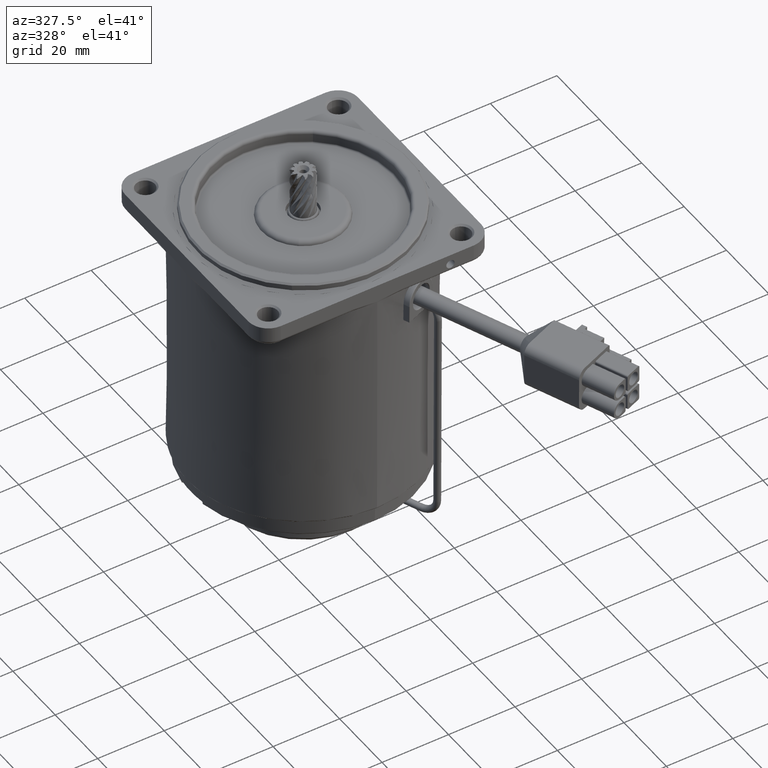
[diagram: clean part render]
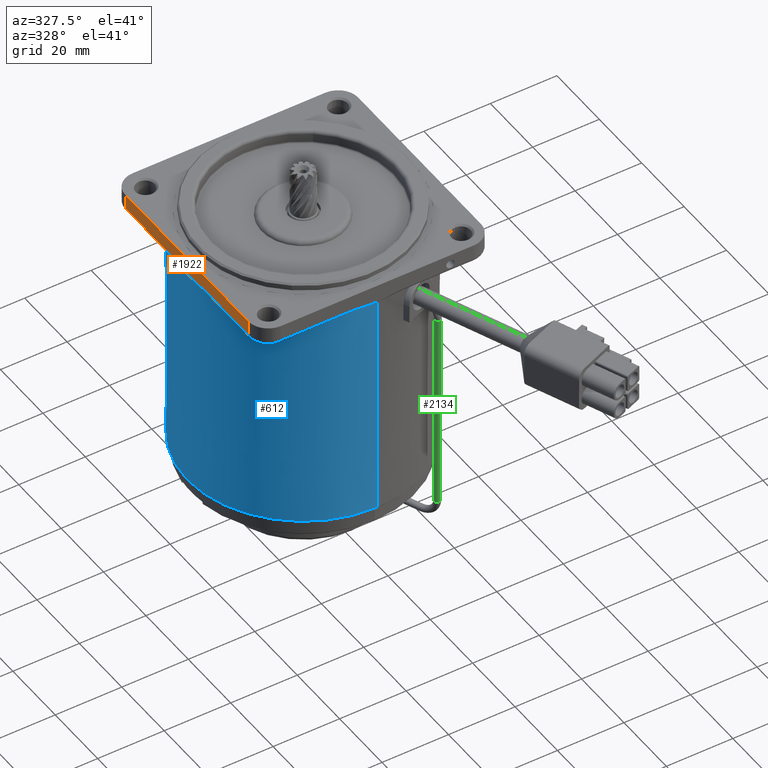
[diagram: same view with three faces highlighted in distinct colors, each labeled with its STEP entity id]
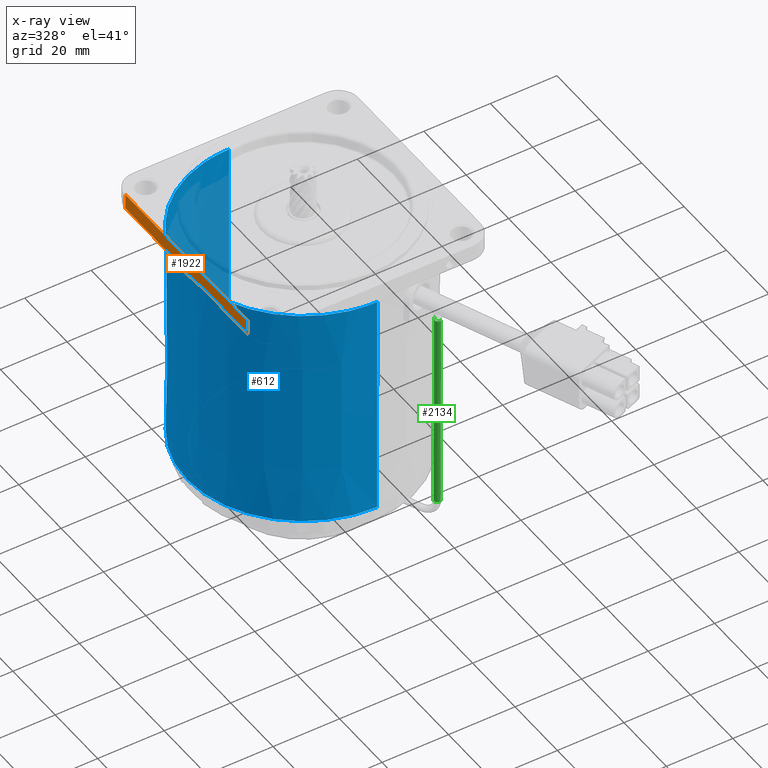
[diagram: x-ray of the same camera — body ghosted, the three highlighted faces saturated]
A machine part, auxiliary view with three faces highlighted in distinct colors.
The next image is the same camera in x-ray (body ghosted, the three faces saturated) — at least one of them is partly hidden behind the body in this view.
Their STEP definitions:

[orange] entity #1922 — the highlighted planar face has unit normal (-1, -0, -0).
#1689 = VERTEX_POINT ( 'NONE', #10441 ) ;
#1694 = EDGE_CURVE ( 'NONE', #1689, #1719, #10435, .T. ) ;
#1719 = VERTEX_POINT ( 'NONE', #10679 ) ;
#1745 = EDGE_CURVE ( 'NONE', #1746, #1764, #10994, .T. ) ;
#1746 = VERTEX_POINT ( 'NONE', #10992 ) ;
#1760 = EDGE_CURVE ( 'NONE', #1764, #1689, #11192, .T. ) ;
#1764 = VERTEX_POINT ( 'NONE', #11199 ) ;
#1844 = ORIENTED_EDGE ( 'NONE', *, *, #1923, .F. ) ;
#1847 = ORIENTED_EDGE ( 'NONE', *, *, #1924, .F. ) ;
#1850 = VERTEX_POINT ( 'NONE', #11571 ) ;
#1856 = ORIENTED_EDGE ( 'NONE', *, *, #1916, .T. ) ;
#1857 = EDGE_LOOP ( 'NONE', ( #1847, #1844, #1903, #1918, #1906, #1856 ) ) ;
#1862 = VERTEX_POINT ( 'NONE', #11615 ) ;
#1903 = ORIENTED_EDGE ( 'NONE', *, *, #1745, .T. ) ;
#1906 = ORIENTED_EDGE ( 'NONE', *, *, #1694, .T. ) ;
#1916 = EDGE_CURVE ( 'NONE', #1719, #1862, #11674, .T. ) ;
#1918 = ORIENTED_EDGE ( 'NONE', *, *, #1760, .T. ) ;
#1922 = ADVANCED_FACE ( 'NONE', ( #11728 ), #11721, .T. ) ;
#1923 = EDGE_CURVE ( 'NONE', #1746, #1850, #11717, .T. ) ;
#1924 = EDGE_CURVE ( 'NONE', #1850, #1862, #11708, .T. ) ;
#10432 = DIRECTION ( 'NONE',  ( -1.000000000000000000, 0.0000000000000000000, 0.0000000000000000000 ) ) ;
#10433 = VECTOR ( 'NONE', #10432, 1000.000000000000000 ) ;
#10435 = LINE ( 'NONE', #10442, #10433 ) ;
#10441 = CARTESIAN_POINT ( 'NONE',  ( -8.262388918002795200, 35.00000000000000000, -5.000000000000000000 ) ) ;
#10442 = CARTESIAN_POINT ( 'NONE',  ( -28.99999999999996100, 35.00000000000000000, -5.000000000000000000 ) ) ;
#10679 = CARTESIAN_POINT ( 'NONE',  ( -28.99999999999996100, 35.00000000000000000, -5.000000000000000000 ) ) ;
#10990 = DIRECTION ( 'NONE',  ( -1.000000000000000000, 0.0000000000000000000, 0.0000000000000000000 ) ) ;
#10991 = VECTOR ( 'NONE', #10990, 1000.000000000000000 ) ;
#10992 = CARTESIAN_POINT ( 'NONE',  ( 28.99999999999996100, 35.00000000000000000, -5.000000000000000000 ) ) ;
#10994 = LINE ( 'NONE', #11001, #10991 ) ;
#11001 = CARTESIAN_POINT ( 'NONE',  ( -28.99999999999996100, 35.00000000000000000, -5.000000000000000000 ) ) ;
#11192 = B_SPLINE_CURVE_WITH_KNOTS ( 'NONE', 3,
 ( #11252, #11251, #11250, #11249, #11248, #11247, #11246, #11245, #11244, #11243, #11242, #11241, #11240, #11239, #11238, #11237, #11236, #11235, #11234, #11233, #11232, #11231 ),
 .UNSPECIFIED., .F., .F.,
 ( 4, 2, 2, 2, 2, 2, 2, 2, 2, 2, 4 ),
 ( 0.0000000000000000000, 0.002075848444307581100, 0.004151696888615162200, 0.006227545332922740700, 0.007265469555076532600, 0.008303393777230322700, 0.009341317999384113700, 0.01037924222153790300, 0.01245509066584548500, 0.01453093911015306700, 0.01660678755446064500 ),
 .UNSPECIFIED. ) ;
#11199 = CARTESIAN_POINT ( 'NONE',  ( 8.262388918002791600, 35.00000000000000000, -5.000000000000000000 ) ) ;
#11231 = CARTESIAN_POINT ( 'NONE',  ( -8.262388918002795200, 35.00000000000000000, -5.000000000000000000 ) ) ;
#11232 = CARTESIAN_POINT ( 'NONE',  ( -7.566809155115128900, 35.00000000000000000, -5.000000000000004400 ) ) ;
#11233 = CARTESIAN_POINT ( 'NONE',  ( -6.874607581250430100, 35.00000000000000700, -5.038848051406572100 ) ) ;
#11234 = CARTESIAN_POINT ( 'NONE',  ( -5.493732071557480400, 34.99999999999999300, -5.157110819628743000 ) ) ;
#11235 = CARTESIAN_POINT ( 'NONE',  ( -4.805131084064811400, 35.00000000000000000, -5.237364418067435200 ) ) ;
#11236 = CARTESIAN_POINT ( 'NONE',  ( -3.429843145745550700, 35.00000000000000000, -5.419882400691942200 ) ) ;
#11237 = CARTESIAN_POINT ( 'NONE',  ( -2.743390315976686400, 35.00000000000000000, -5.523097039115362400 ) ) ;
#11238 = CARTESIAN_POINT ( 'NONE',  ( -1.713900357772869500, 35.00000000000000000, -5.677183927001580700 ) ) ;
#11239 = CARTESIAN_POINT ( 'NONE',  ( -1.370788944538081900, 35.00000000000000000, -5.728903047915269800 ) ) ;
#11240 = CARTESIAN_POINT ( 'NONE',  ( -0.6825192012154538400, 35.00000000000000000, -5.818269917176830400 ) ) ;
#11241 = CARTESIAN_POINT ( 'NONE',  ( -0.3367592003579819000, 34.99999999999999300, -5.856355137943740600 ) ) ;
#11242 = CARTESIAN_POINT ( 'NONE',  ( 0.3569606275094551200, 35.00000000000000700, -5.854942391709323100 ) ) ;
#11243 = CARTESIAN_POINT ( 'NONE',  ( 0.7004528748679930100, 35.00000000000000000, -5.816205279008959100 ) ) ;
#11244 = CARTESIAN_POINT ( 'NONE',  ( 1.386363469100297700, 34.99999999999999300, -5.726603597174279700 ) ) ;
#11245 = CARTESIAN_POINT ( 'NONE',  ( 1.728671550256424000, 34.99999999999999300, -5.674985864384846800 ) ) ;
#11246 = CARTESIAN_POINT ( 'NONE',  ( 2.755395784772543400, 35.00000000000000000, -5.521273766652870800 ) ) ;
#11247 = CARTESIAN_POINT ( 'NONE',  ( 3.439830156679016100, 35.00000000000000000, -5.418464220606325400 ) ) ;
#11248 = CARTESIAN_POINT ( 'NONE',  ( 4.812126346800164700, 35.00000000000000000, -5.236529991787119100 ) ) ;
#11249 = CARTESIAN_POINT ( 'NONE',  ( 5.499456577879501900, 35.00000000000000000, -5.156520519983172500 ) ) ;
#11250 = CARTESIAN_POINT ( 'NONE',  ( 6.878509073564059900, 35.00000000000000000, -5.038614649078252400 ) ) ;
#11251 = CARTESIAN_POINT ( 'NONE',  ( 7.569934658152855700, 35.00000000000000000, -4.999999999999999100 ) ) ;
#11252 = CARTESIAN_POINT ( 'NONE',  ( 8.262388918002791600, 35.00000000000000000, -5.000000000000000000 ) ) ;
#11571 = CARTESIAN_POINT ( 'NONE',  ( 28.99999999999996100, 35.00000000000000000, -0.5000000000000004400 ) ) ;
#11615 = CARTESIAN_POINT ( 'NONE',  ( -28.99999999999996100, 35.00000000000000000, -0.5000000000000004400 ) ) ;
#11669 = VECTOR ( 'NONE', #11731, 1000.000000000000000 ) ;
#11670 = CARTESIAN_POINT ( 'NONE',  ( -28.99999999999996100, 35.00000000000000000, -6.000000000000000000 ) ) ;
#11674 = LINE ( 'NONE', #11670, #11669 ) ;
#11675 = AXIS2_PLACEMENT_3D ( 'NONE', #11715, #11714, #11713 ) ;
#11705 = DIRECTION ( 'NONE',  ( -1.000000000000000000, 0.0000000000000000000, 0.0000000000000000000 ) ) ;
#11706 = VECTOR ( 'NONE', #11705, 1000.000000000000000 ) ;
#11707 = CARTESIAN_POINT ( 'NONE',  ( -28.99999999999996100, 35.00000000000000000, -0.5000000000000004400 ) ) ;
#11708 = LINE ( 'NONE', #11707, #11706 ) ;
#11710 = DIRECTION ( 'NONE',  ( 0.0000000000000000000, 0.0000000000000000000, 1.000000000000000000 ) ) ;
#11711 = VECTOR ( 'NONE', #11710, 1000.000000000000000 ) ;
#11712 = CARTESIAN_POINT ( 'NONE',  ( 28.99999999999996100, 35.00000000000000000, -6.000000000000000000 ) ) ;
#11713 = DIRECTION ( 'NONE',  ( 0.0000000000000000000, -0.0000000000000000000, 1.000000000000000000 ) ) ;
#11714 = DIRECTION ( 'NONE',  ( 0.0000000000000000000, 1.000000000000000000, 0.0000000000000000000 ) ) ;
#11715 = CARTESIAN_POINT ( 'NONE',  ( -28.99999999999996100, 35.00000000000000000, -6.000000000000000000 ) ) ;
#11717 = LINE ( 'NONE', #11712, #11711 ) ;
#11721 = PLANE ( 'NONE',  #11675 ) ;
#11728 = FACE_OUTER_BOUND ( 'NONE', #1857, .T. ) ;
#11731 = DIRECTION ( 'NONE',  ( 0.0000000000000000000, 0.0000000000000000000, 1.000000000000000000 ) ) ;

[blue] entity #612 — the highlighted conical surface has half-angle 0.1 deg.
#603 = ORIENTED_EDGE ( 'NONE', *, *, #626, .T. ) ;
#612 = ADVANCED_FACE ( 'NONE', ( #7637 ), #7357, .T. ) ;
#616 = ORIENTED_EDGE ( 'NONE', *, *, #617, .T. ) ;
#617 = EDGE_CURVE ( 'NONE', #627, #636, #7671, .T. ) ;
#618 = EDGE_LOOP ( 'NONE', ( #603, #635, #634, #616, #623, #663, #622, #656 ) ) ;
#622 = ORIENTED_EDGE ( 'NONE', *, *, #661, .T. ) ;
#623 = ORIENTED_EDGE ( 'NONE', *, *, #624, .T. ) ;
#624 = EDGE_CURVE ( 'NONE', #636, #638, #7655, .T. ) ;
#626 = EDGE_CURVE ( 'NONE', #631, #639, #7656, .T. ) ;
#627 = VERTEX_POINT ( 'NONE', #7669 ) ;
#629 = VERTEX_POINT ( 'NONE', #7649 ) ;
#631 = VERTEX_POINT ( 'NONE', #7703 ) ;
#632 = VERTEX_POINT ( 'NONE', #7706 ) ;
#633 = EDGE_CURVE ( 'NONE', #639, #632, #7705, .T. ) ;
#634 = ORIENTED_EDGE ( 'NONE', *, *, #637, .T. ) ;
#635 = ORIENTED_EDGE ( 'NONE', *, *, #633, .T. ) ;
#636 = VERTEX_POINT ( 'NONE', #7694 ) ;
#637 = EDGE_CURVE ( 'NONE', #632, #627, #7695, .T. ) ;
#638 = VERTEX_POINT ( 'NONE', #7698 ) ;
#639 = VERTEX_POINT ( 'NONE', #7697 ) ;
#656 = ORIENTED_EDGE ( 'NONE', *, *, #660, .F. ) ;
#660 = EDGE_CURVE ( 'NONE', #631, #629, #7713, .T. ) ;
#661 = EDGE_CURVE ( 'NONE', #770, #629, #7729, .T. ) ;
#663 = ORIENTED_EDGE ( 'NONE', *, *, #772, .T. ) ;
#770 = VERTEX_POINT ( 'NONE', #8420 ) ;
#772 = EDGE_CURVE ( 'NONE', #638, #770, #8440, .T. ) ;
#7354 = CARTESIAN_POINT ( 'NONE',  ( 0.0000000000000000000, 0.0000000000000000000, -75.00087266418292100 ) ) ;
#7357 = CONICAL_SURFACE ( 'NONE', #7373, 34.86909865009796800, 0.001745329251994349100 ) ;
#7359 = DIRECTION ( 'NONE',  ( 1.000000000000000000, 0.0000000000000000000, 0.0000000000000000000 ) ) ;
#7360 = DIRECTION ( 'NONE',  ( -0.0000000000000000000, -0.0000000000000000000, 1.000000000000000000 ) ) ;
#7373 = AXIS2_PLACEMENT_3D ( 'NONE', #7354, #7360, #7359 ) ;
#7637 = FACE_OUTER_BOUND ( 'NONE', #618, .T. ) ;
#7649 = CARTESIAN_POINT ( 'NONE',  ( 34.98952801385486600, 0.0000000000000000000, -6.000000000000005300 ) ) ;
#7650 = AXIS2_PLACEMENT_3D ( 'NONE', #7689, #7688, #7687 ) ;
#7652 = DIRECTION ( 'NONE',  ( -1.000000000000000000, 0.0000000000000000000, 0.0000000000000000000 ) ) ;
#7653 = DIRECTION ( 'NONE',  ( -0.0000000000000000000, -0.0000000000000000000, -1.000000000000000000 ) ) ;
#7654 = AXIS2_PLACEMENT_3D ( 'NONE', #7670, #7653, #7652 ) ;
#7655 = CIRCLE ( 'NONE', #7654, 34.98952801385487300 ) ;
#7656 = CIRCLE ( 'NONE', #7660, 34.86909865009796800 ) ;
#7660 = AXIS2_PLACEMENT_3D ( 'NONE', #7667, #7708, #7707 ) ;
#7663 = DIRECTION ( 'NONE',  ( -1.000000000000000000, 0.0000000000000000000, 0.0000000000000000000 ) ) ;
#7664 = DIRECTION ( 'NONE',  ( -0.0000000000000000000, -0.0000000000000000000, -1.000000000000000000 ) ) ;
#7665 = CARTESIAN_POINT ( 'NONE',  ( 0.0000000000000000000, 0.0000000000000000000, -6.000000000000005300 ) ) ;
#7666 = AXIS2_PLACEMENT_3D ( 'NONE', #7665, #7664, #7663 ) ;
#7667 = CARTESIAN_POINT ( 'NONE',  ( 0.0000000000000000000, 0.0000000000000000000, -75.00087266418292100 ) ) ;
#7669 = CARTESIAN_POINT ( 'NONE',  ( -34.00000000000000000, 8.262388918002768500, -6.000000000000005300 ) ) ;
#7670 = CARTESIAN_POINT ( 'NONE',  ( 0.0000000000000000000, 0.0000000000000000000, -6.000000000000005300 ) ) ;
#7671 = CIRCLE ( 'NONE', #7666, 34.98952801385487300 ) ;
#7687 = DIRECTION ( 'NONE',  ( -1.000000000000000000, 0.0000000000000000000, 0.0000000000000000000 ) ) ;
#7688 = DIRECTION ( 'NONE',  ( -0.0000000000000000000, -0.0000000000000000000, -1.000000000000000000 ) ) ;
#7689 = CARTESIAN_POINT ( 'NONE',  ( 0.0000000000000000000, 0.0000000000000000000, -6.000000000000005300 ) ) ;
#7692 = DIRECTION ( 'NONE',  ( -0.001745328365898328300, 2.137410796758468200E-019, 0.9999984769132876900 ) ) ;
#7693 = VECTOR ( 'NONE', #7692, 1000.000000000000000 ) ;
#7694 = CARTESIAN_POINT ( 'NONE',  ( -8.262388918002795200, 33.99999999999999300, -6.000000000000005300 ) ) ;
#7695 = CIRCLE ( 'NONE', #7650, 34.98952801385487300 ) ;
#7697 = CARTESIAN_POINT ( 'NONE',  ( -34.86909865009796800, 4.270233005099577300E-015, -75.00087266418292100 ) ) ;
#7698 = CARTESIAN_POINT ( 'NONE',  ( 8.262388918002795200, 33.99999999999999300, -6.000000000000005300 ) ) ;
#7703 = CARTESIAN_POINT ( 'NONE',  ( 34.86909865009796800, 0.0000000000000000000, -75.00087266418292100 ) ) ;
#7704 = CARTESIAN_POINT ( 'NONE',  ( -34.86909865009796800, 4.270233005099577300E-015, -75.00087266418292100 ) ) ;
#7705 = LINE ( 'NONE', #7704, #7693 ) ;
#7706 = CARTESIAN_POINT ( 'NONE',  ( -34.98952801385486600, 4.284981348584401200E-015, -6.000000000000005300 ) ) ;
#7707 = DIRECTION ( 'NONE',  ( 1.000000000000000000, 0.0000000000000000000, 0.0000000000000000000 ) ) ;
#7708 = DIRECTION ( 'NONE',  ( -0.0000000000000000000, -0.0000000000000000000, 1.000000000000000000 ) ) ;
#7713 = LINE ( 'NONE', #7762, #7761 ) ;
#7718 = AXIS2_PLACEMENT_3D ( 'NONE', #7758, #7757, #7756 ) ;
#7729 = CIRCLE ( 'NONE', #7718, 34.98952801385487300 ) ;
#7756 = DIRECTION ( 'NONE',  ( -1.000000000000000000, 0.0000000000000000000, 0.0000000000000000000 ) ) ;
#7757 = DIRECTION ( 'NONE',  ( -0.0000000000000000000, -0.0000000000000000000, -1.000000000000000000 ) ) ;
#7758 = CARTESIAN_POINT ( 'NONE',  ( 0.0000000000000000000, 0.0000000000000000000, -6.000000000000005300 ) ) ;
#7760 = DIRECTION ( 'NONE',  ( 0.001745328365898328300, 0.0000000000000000000, 0.9999984769132876900 ) ) ;
#7761 = VECTOR ( 'NONE', #7760, 1000.000000000000000 ) ;
#7762 = CARTESIAN_POINT ( 'NONE',  ( 34.86909865009796800, 0.0000000000000000000, -75.00087266418292100 ) ) ;
#8354 = AXIS2_PLACEMENT_3D ( 'NONE', #8410, #8409, #8408 ) ;
#8408 = DIRECTION ( 'NONE',  ( -1.000000000000000000, 0.0000000000000000000, 0.0000000000000000000 ) ) ;
#8409 = DIRECTION ( 'NONE',  ( -0.0000000000000000000, -0.0000000000000000000, -1.000000000000000000 ) ) ;
#8410 = CARTESIAN_POINT ( 'NONE',  ( 0.0000000000000000000, 0.0000000000000000000, -6.000000000000005300 ) ) ;
#8420 = CARTESIAN_POINT ( 'NONE',  ( 33.99999999999999300, 8.262388918002795200, -6.000000000000005300 ) ) ;
#8440 = CIRCLE ( 'NONE', #8354, 34.98952801385487300 ) ;

[green] entity #2134 — the highlighted cylindrical surface (edge-blend (fillet) strip) has radius 1 mm, axis along (0.0045, 0.0019, 1).
#2036 = VERTEX_POINT ( 'NONE', #11877 ) ;
#2037 = VERTEX_POINT ( 'NONE', #11880 ) ;
#2038 = VERTEX_POINT ( 'NONE', #11876 ) ;
#2042 = EDGE_CURVE ( 'NONE', #2036, #2038, #11881, .T. ) ;
#2044 = EDGE_CURVE ( 'NONE', #2036, #2047, #11899, .T. ) ;
#2047 = VERTEX_POINT ( 'NONE', #11892 ) ;
#2109 = EDGE_CURVE ( 'NONE', #2047, #2037, #12030, .T. ) ;
#2126 = ORIENTED_EDGE ( 'NONE', *, *, #2133, .T. ) ;
#2129 = ORIENTED_EDGE ( 'NONE', *, *, #2109, .F. ) ;
#2133 = EDGE_CURVE ( 'NONE', #2038, #2037, #12714, .T. ) ;
#2134 = ADVANCED_FACE ( 'NONE', ( #12749 ), #12693, .T. ) ;
#2135 = ORIENTED_EDGE ( 'NONE', *, *, #2044, .F. ) ;
#2137 = ORIENTED_EDGE ( 'NONE', *, *, #2042, .T. ) ;
#2153 = EDGE_LOOP ( 'NONE', ( #2137, #2126, #2129, #2135 ) ) ;
#11876 = CARTESIAN_POINT ( 'NONE',  ( -46.27851523795699500, 12.65343114361987600, 1.224646799147351500E-016 ) ) ;
#11877 = CARTESIAN_POINT ( 'NONE',  ( -46.27851523795702300, 14.65343114361987100, 0.0000000000000000000 ) ) ;
#11880 = CARTESIAN_POINT ( 'NONE',  ( 14.22148476204298700, 12.65343114361987800, 1.224646799147351500E-016 ) ) ;
#11881 = CIRCLE ( 'NONE', #11903, 0.9999999999999981100 ) ;
#11883 = VECTOR ( 'NONE', #11893, 1000.000000000000000 ) ;
#11892 = CARTESIAN_POINT ( 'NONE',  ( 14.22148476204296600, 14.65343114361987300, 0.0000000000000000000 ) ) ;
#11893 = DIRECTION ( 'NONE',  ( 1.000000000000000000, 2.867311530540177900E-017, 0.0000000000000000000 ) ) ;
#11896 = DIRECTION ( 'NONE',  ( 0.0000000000000000000, 0.0000000000000000000, -1.000000000000000000 ) ) ;
#11897 = DIRECTION ( 'NONE',  ( 1.000000000000000000, 1.104099790629419800E-014, 0.0000000000000000000 ) ) ;
#11898 = CARTESIAN_POINT ( 'NONE',  ( -46.27851523795700900, 14.65343114361987100, 0.0000000000000000000 ) ) ;
#11899 = LINE ( 'NONE', #11898, #11883 ) ;
#11903 = AXIS2_PLACEMENT_3D ( 'NONE', #11909, #11897, #11896 ) ;
#11909 = CARTESIAN_POINT ( 'NONE',  ( -46.27851523795700900, 13.65343114361987300, 0.0000000000000000000 ) ) ;
#12019 = DIRECTION ( 'NONE',  ( 0.0000000000000000000, 0.0000000000000000000, -1.000000000000000000 ) ) ;
#12020 = DIRECTION ( 'NONE',  ( 1.000000000000000000, 1.104099790629419800E-014, 0.0000000000000000000 ) ) ;
#12021 = CARTESIAN_POINT ( 'NONE',  ( 14.22148476204297700, 13.65343114361987500, 0.0000000000000000000 ) ) ;
#12030 = CIRCLE ( 'NONE', #12033, 0.9999999999999981100 ) ;
#12033 = AXIS2_PLACEMENT_3D ( 'NONE', #12021, #12020, #12019 ) ;
#12691 = DIRECTION ( 'NONE',  ( 1.000000000000000000, 2.867311530540177900E-017, 0.0000000000000000000 ) ) ;
#12692 = CARTESIAN_POINT ( 'NONE',  ( -46.27851523795700900, 12.65343114361987600, 1.224646799147350700E-016 ) ) ;
#12693 = CYLINDRICAL_SURFACE ( 'NONE', #12746, 0.9999999999999974500 ) ;
#12713 = VECTOR ( 'NONE', #12691, 1000.000000000000000 ) ;
#12714 = LINE ( 'NONE', #12692, #12713 ) ;
#12739 = DIRECTION ( 'NONE',  ( 0.0000000000000000000, 1.000000000000000000, 0.0000000000000000000 ) ) ;
#12740 = DIRECTION ( 'NONE',  ( 1.000000000000000000, 2.867311530540177900E-017, 0.0000000000000000000 ) ) ;
#12745 = CARTESIAN_POINT ( 'NONE',  ( -46.27851523795700900, 13.65343114361987300, 0.0000000000000000000 ) ) ;
#12746 = AXIS2_PLACEMENT_3D ( 'NONE', #12745, #12740, #12739 ) ;
#12749 = FACE_OUTER_BOUND ( 'NONE', #2153, .T. ) ;